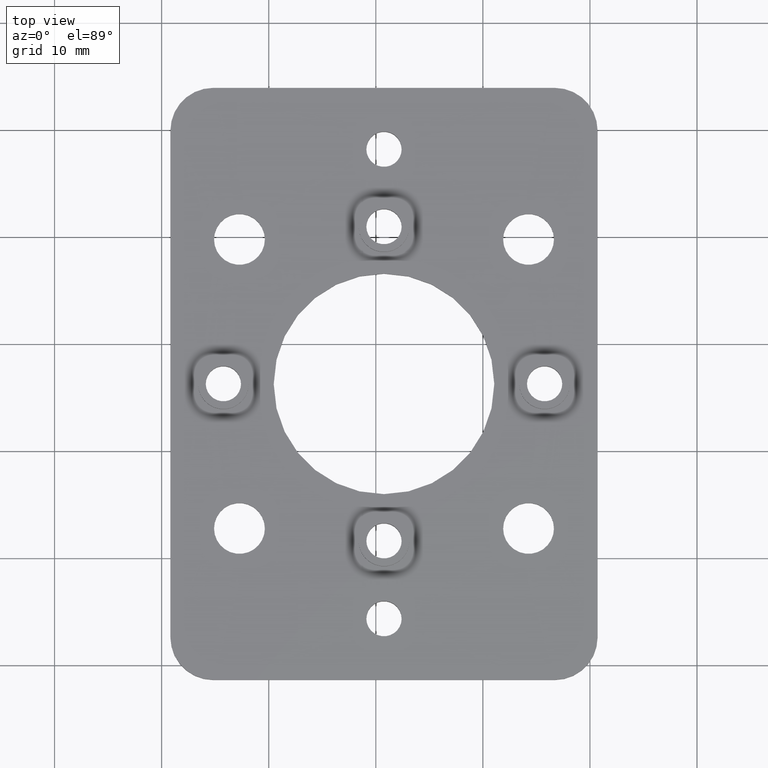
[diagram: clean part render]
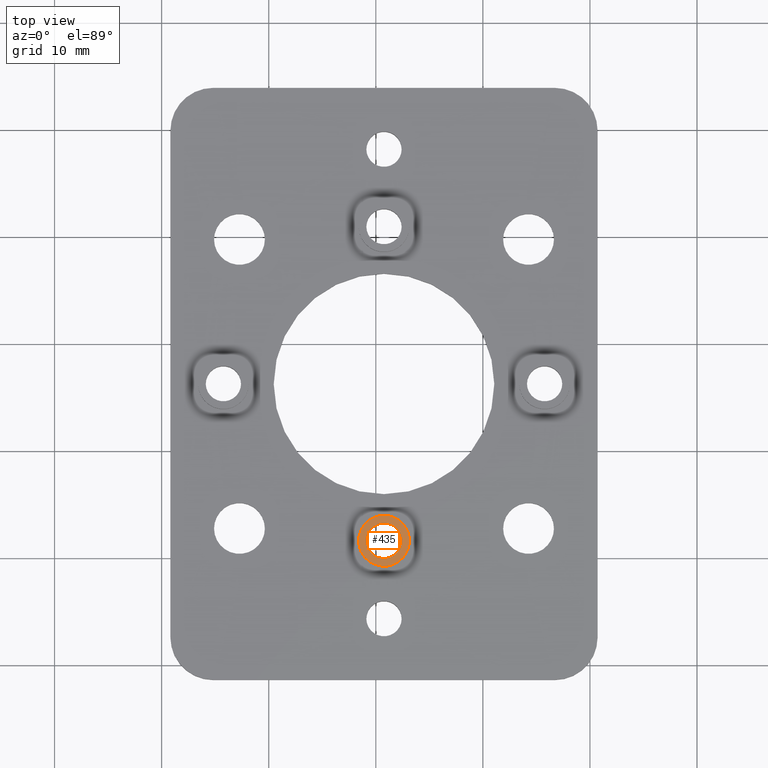
[diagram: same view with one face highlighted and labeled with its STEP entity id]
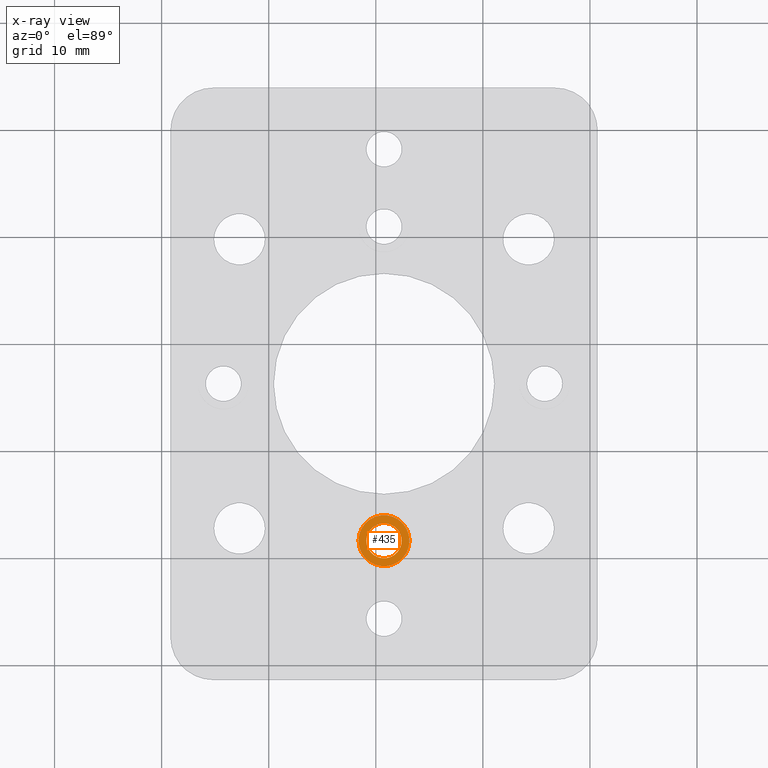
[diagram: x-ray of the same camera — body ghosted, the highlighted face saturated]
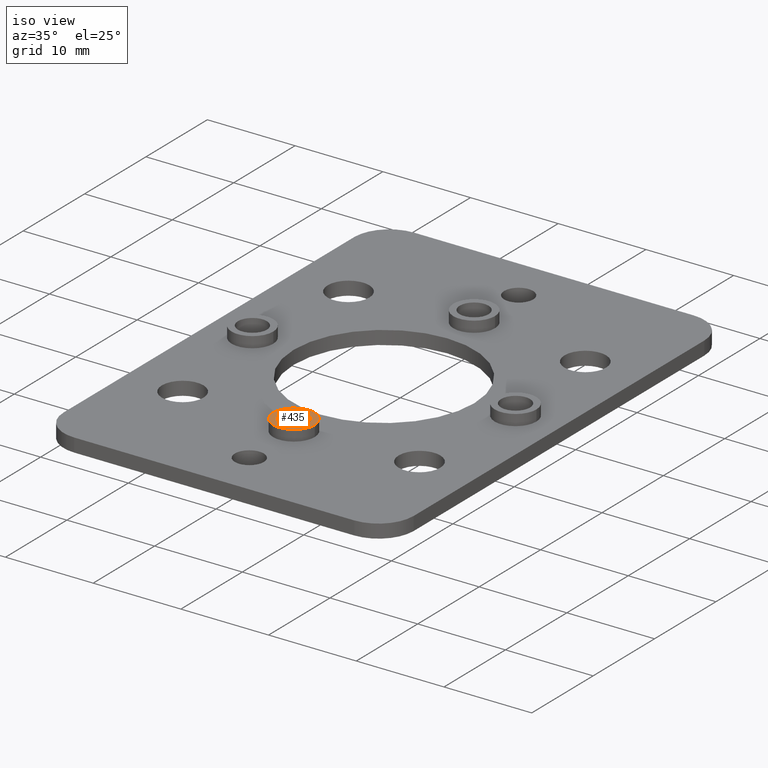
[diagram: same view with one face highlighted and labeled with its STEP entity id]
A machine part, top view. The second image highlights one B-rep face of the part: STEP entity #435.
The next image is the same camera in x-ray: the body ghosted, the highlighted face saturated — about 0% of this face is hidden behind the body in this view.
A second angle (iso view) of the same face is appended — the face is thin or edge-on in the first view.
In plain terms, the highlighted planar face has unit normal (0, 0, -1).
Its self-contained STEP definition (entity closure, byte-faithful):
#168=CARTESIAN_POINT('',(-17.583154132545623,-8.410901912274156,2.800000000000000));
#169=VERTEX_POINT('',#168);
#170=CARTESIAN_POINT('',(-19.233154132545625,-8.410901912274156,2.800000000000000));
#171=DIRECTION('',(0.0,0.0,-1.0));
#172=DIRECTION('',(-1.0,0.0,0.0));
#173=AXIS2_PLACEMENT_3D('',#170,#171,#172);
#174=CIRCLE('',#173,1.650000000000000);
#175=EDGE_CURVE('',#169,#169,#174,.T.);
#401=CARTESIAN_POINT('',(-16.858154132545625,-8.410901912274154,2.800000000000000));
#402=VERTEX_POINT('',#401);
#403=CARTESIAN_POINT('',(-19.233154132545625,-8.410901912274154,2.800000000000000));
#404=DIRECTION('',(0.0,0.0,-1.0));
#405=DIRECTION('',(-1.0,0.0,0.0));
#406=AXIS2_PLACEMENT_3D('',#403,#404,#405);
#407=CIRCLE('',#406,2.375000000000000);
#408=EDGE_CURVE('',#402,#402,#407,.T.);
#424=CARTESIAN_POINT('',(-19.233154132545625,-8.410901912274154,2.800000000000000));
#425=DIRECTION('',(0.0,0.0,-1.0));
#426=DIRECTION('',(-1.0,0.0,0.0));
#427=AXIS2_PLACEMENT_3D('',#424,#425,#426);
#428=PLANE('',#427);
#429=ORIENTED_EDGE('',*,*,#408,.F.);
#430=EDGE_LOOP('',(#429));
#431=FACE_OUTER_BOUND('',#430,.T.);
#432=ORIENTED_EDGE('',*,*,#175,.T.);
#433=EDGE_LOOP('',(#432));
#434=FACE_BOUND('',#433,.T.);
#435=ADVANCED_FACE('',(#431,#434),#428,.F.);